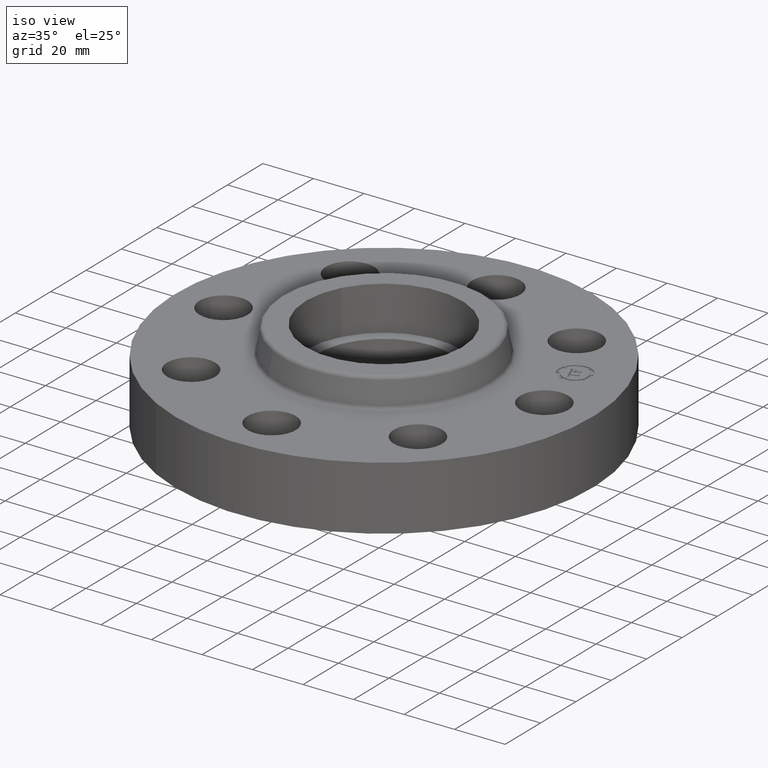
[diagram: clean part render]
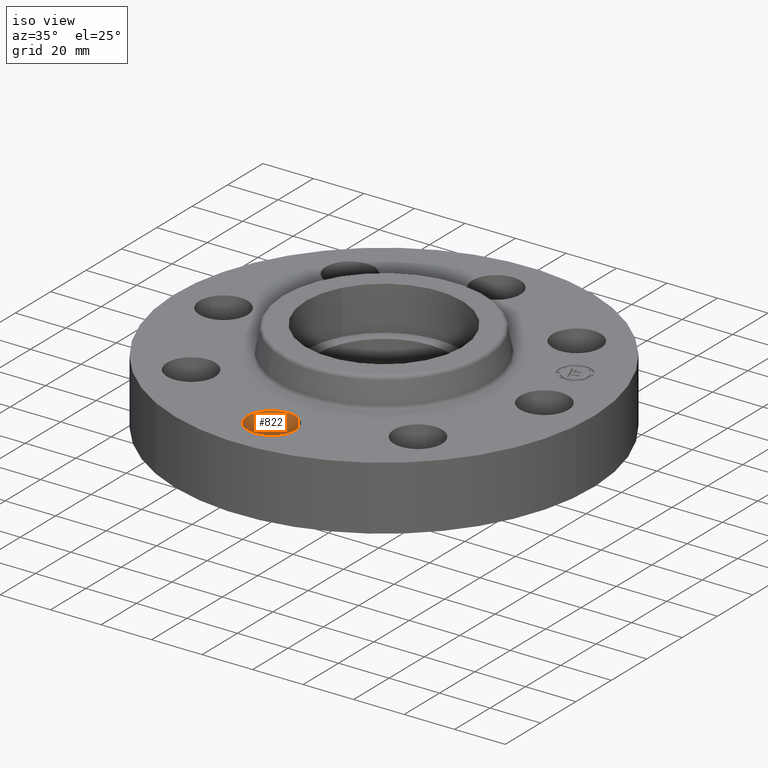
[diagram: same view with one face highlighted and labeled with its STEP entity id]
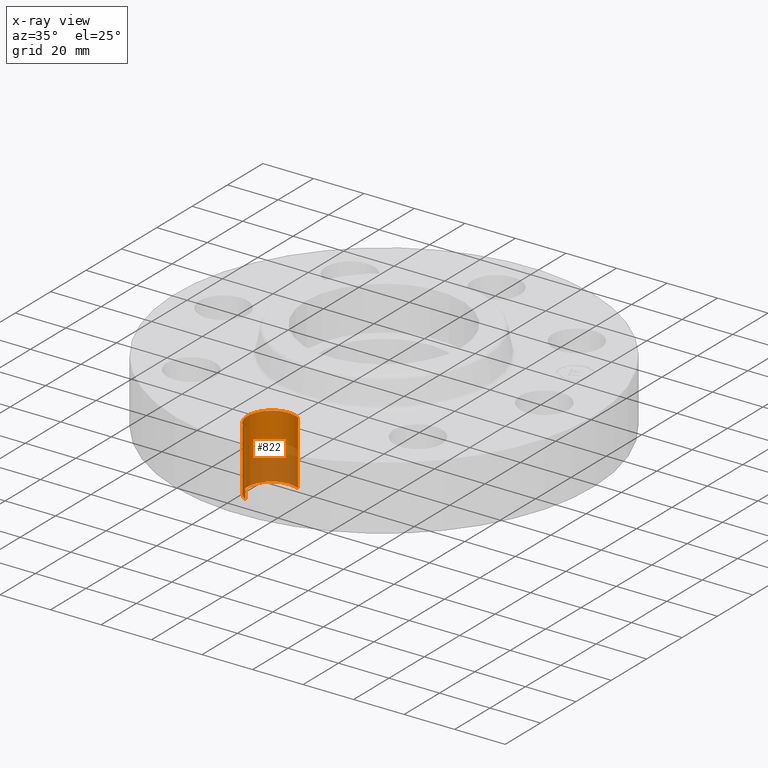
[diagram: x-ray of the same camera — body ghosted, the highlighted face saturated]
A machine part, iso view. The second image highlights one B-rep face of the part: STEP entity #822.
The next image is the same camera in x-ray: the body ghosted, the highlighted face saturated — about 46% of this face is hidden behind the body in this view.
In plain terms, the highlighted cylindrical surface (edge-blend (fillet) strip) has radius 9.525 mm, axis along (0, -0, -1).
Its self-contained STEP definition (entity closure, byte-faithful):
#265=AXIS2_PLACEMENT_3D('Circle Axis2P3D',#263,#264,$) ;
#795=AXIS2_PLACEMENT_3D('Cylinder Axis2P3D',#792,#793,#794) ;
#813=AXIS2_PLACEMENT_3D('Circle Axis2P3D',#811,#812,$) ;
#258=CARTESIAN_POINT('Vertex',(0.179784576977,-2.1709065393,0.)) ;
#260=CARTESIAN_POINT('Vertex',(-0.179784576977,-2.82909346072,0.)) ;
#263=CARTESIAN_POINT('Axis2P3D Location',(1.39870617276E-016,-2.50000000001,0.)) ;
#792=CARTESIAN_POINT('Axis2P3D Location',(1.53080849894E-016,-2.50000000001,0.99606299213)) ;
#797=CARTESIAN_POINT('Line Origine',(-0.179784576977,-2.82909346072,0.500000000002)) ;
#801=CARTESIAN_POINT('Vertex',(-0.179784576977,-2.82909346072,1.)) ;
#804=CARTESIAN_POINT('Line Origine',(0.179784576977,-2.1709065393,0.500000000002)) ;
#808=CARTESIAN_POINT('Vertex',(0.179784576977,-2.1709065393,1.)) ;
#811=CARTESIAN_POINT('Axis2P3D Location',(1.53080849894E-016,-2.50000000001,1.)) ;
#264=DIRECTION('Axis2P3D Direction',(0.,0.,-0.0393700787402)) ;
#793=DIRECTION('Axis2P3D Direction',(0.,-0.,-0.0393700787402)) ;
#794=DIRECTION('Axis2P3D XDirection',(0.0188750212049,0.0345504945626,-0.)) ;
#798=DIRECTION('Vector Direction',(0.,0.,-0.0393700787402)) ;
#805=DIRECTION('Vector Direction',(0.,0.,-0.0393700787402)) ;
#812=DIRECTION('Axis2P3D Direction',(0.,-0.,-0.0393700787402)) ;
#799=VECTOR('Line Direction',#798,0.0393700787402) ;
#806=VECTOR('Line Direction',#805,0.0393700787402) ;
#817=ORIENTED_EDGE('',*,*,#803,.F.) ;
#818=ORIENTED_EDGE('',*,*,#267,.T.) ;
#819=ORIENTED_EDGE('',*,*,#810,.T.) ;
#820=ORIENTED_EDGE('',*,*,#815,.F.) ;
#822=ADVANCED_FACE('PartBody',(#821),#796,.F.) ;
#266=CIRCLE('generated circle',#265,0.375000000002) ;
#814=CIRCLE('generated circle',#813,0.375000000002) ;
#796=CYLINDRICAL_SURFACE('generated cylinder',#795,0.375000000002) ;
#267=EDGE_CURVE('',#261,#259,#266,.T.) ;
#803=EDGE_CURVE('',#261,#802,#800,.F.) ;
#810=EDGE_CURVE('',#259,#809,#807,.F.) ;
#815=EDGE_CURVE('',#802,#809,#814,.T.) ;
#816=EDGE_LOOP('',(#817,#818,#819,#820)) ;
#821=FACE_OUTER_BOUND('',#816,.T.) ;
#800=LINE('Line',#797,#799) ;
#807=LINE('Line',#804,#806) ;
#259=VERTEX_POINT('',#258) ;
#261=VERTEX_POINT('',#260) ;
#802=VERTEX_POINT('',#801) ;
#809=VERTEX_POINT('',#808) ;